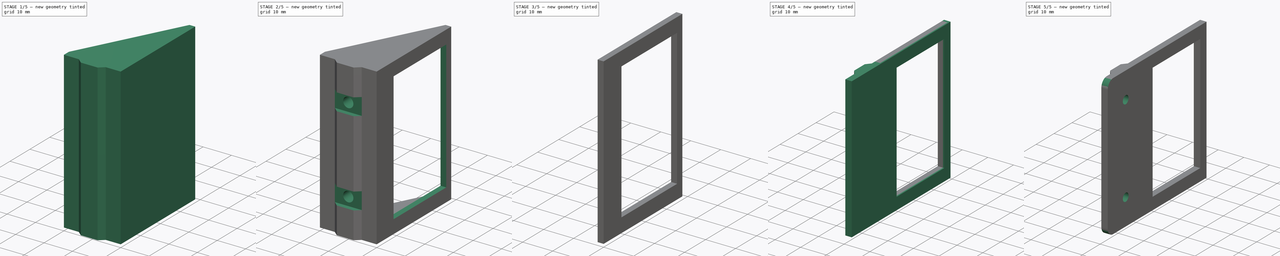
[diagram: build sequence overview — one tinted view per stage of 5, left to right]
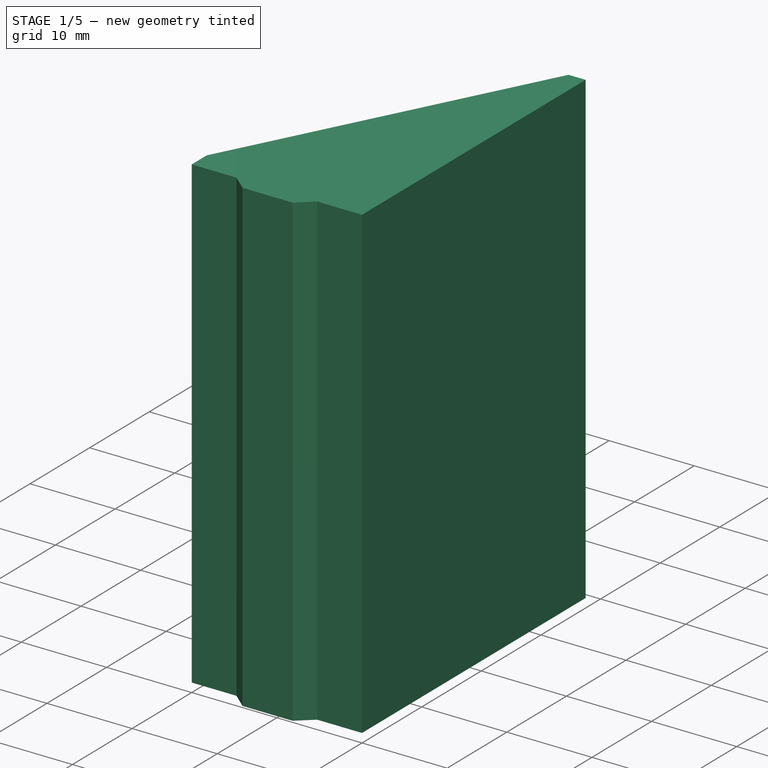
[diagram: stage 1 of 5 — iso view after this stage's code; geometry added in this stage tinted green]
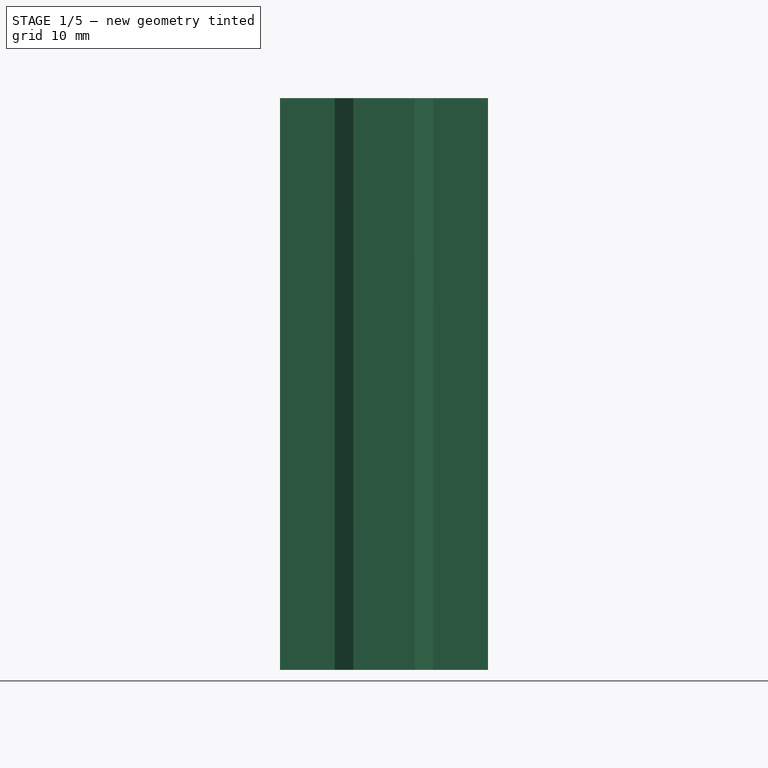
[diagram: stage 1 of 5 — front view after this stage's code; geometry added in this stage tinted green]
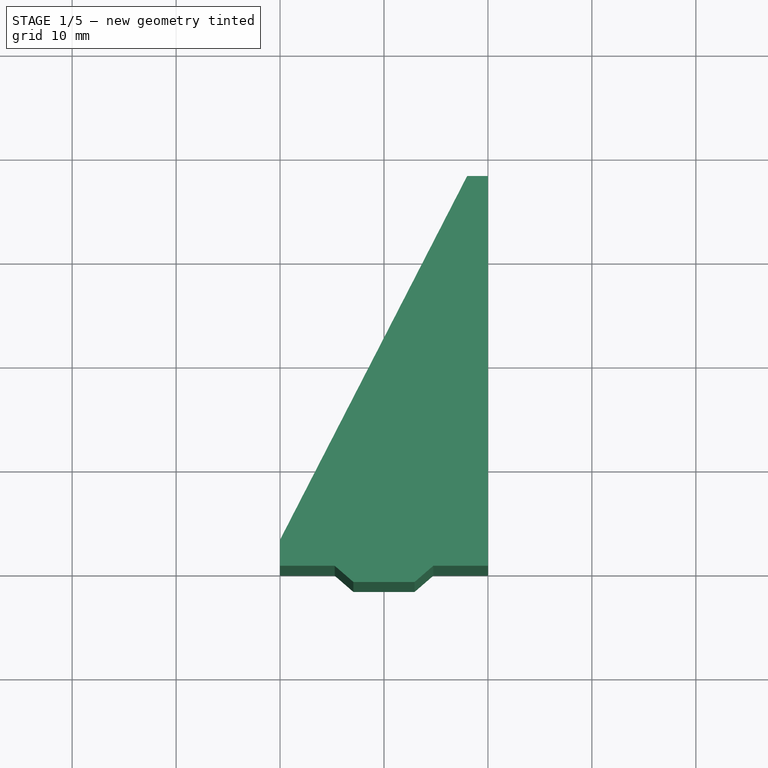
[diagram: stage 1 of 5 — top view after this stage's code; geometry added in this stage tinted green]
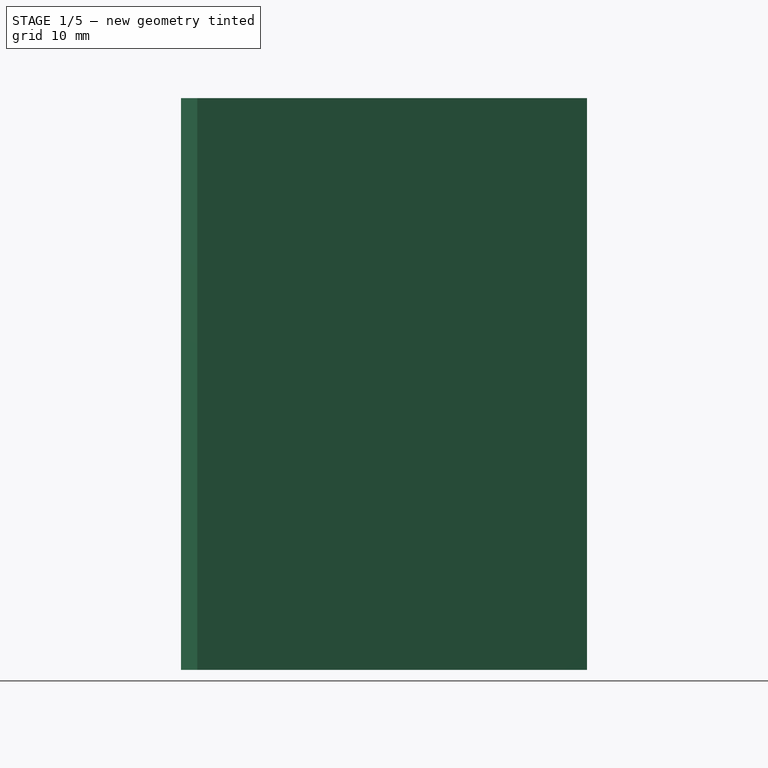
[diagram: stage 1 of 5 — right view after this stage's code; geometry added in this stage tinted green]
FCSTD DOCUMENT  (FreeCAD 0.21R33771 (Git))
Label: suporte-voltimetro-amperimetro-plano
License: All rights reserved
LicenseURL: https://en.wikipedia.org/wiki/All_rights_reserved
objects: Sketcher::SketchObject×13, PartDesign::Pocket×8, PartDesign::Pad×7, PartDesign::Chamfer×1, PartDesign::Fillet×1, PartDesign::Body×1
note: 48 computed .brp shape members not serialized (recipe doc carries the construction recipe); baked Part::Feature solids carry a one-line shape summary decoded from their .brp

FEATURE [Sketcher::SketchObject] Sketch
  FullyConstrained = true
  MapMode = 5
  Support = -> [XY_Plane]
  sketch-geometry (11):
    g0: LineSegment StartX=-10 StartY=-17.5 StartZ=0 EndX=-10 EndY=-20 EndZ=0
    g1: LineSegment StartX=-10 StartY=-20 StartZ=0 EndX=10 EndY=-20 EndZ=0
    g2: LineSegment StartX=10 StartY=-20 StartZ=0 EndX=10 EndY=17.5 EndZ=0
    g3: LineSegment StartX=10 StartY=17.5 StartZ=0 EndX=8 EndY=17.5 EndZ=0
    g4: LineSegment StartX=8 StartY=17.5 StartZ=0 EndX=8 EndY=-17.5 EndZ=0
    g5: LineSegment StartX=8 StartY=-17.5 StartZ=0 EndX=-10 EndY=-17.5 EndZ=0
    g6: LineSegment StartX=-10 StartY=-20 StartZ=0 EndX=-4.74 EndY=-20 EndZ=0
    g7: LineSegment StartX=-4.74 StartY=-20 StartZ=0 EndX=-2.94 EndY=-21.56 EndZ=0
    g8: LineSegment StartX=-2.94 StartY=-21.56 StartZ=0 EndX=2.94 EndY=-21.56 EndZ=0
    g9: LineSegment StartX=2.94 StartY=-21.56 StartZ=0 EndX=4.74 EndY=-20 EndZ=0
    g10: LineSegment StartX=4.74 StartY=-20 StartZ=0 EndX=10 EndY=-20 EndZ=0
  constraints (29):
    c: Vertical(g0)
    c: Coincident(g0,g1)
    c: Coincident(g1,g2)
    c: Coincident(g2,g3)
    c: Horizontal(g3)
    c: Coincident(g3,g4)
    c: Coincident(g4,g5)
    c: Coincident(g5,g0)
    c: Horizontal(g5)
    c: Symmetric(g0,g2,g-2)
    c: Symmetric(g4,g3,g-1)
    c: Vertical(g2)
    c: DistanceX(g3,g3) = 2
    c: DistanceY(g4,g4) = 35
    c: DistanceX(g1,g1) = 20
    c: Coincident(g0,g6)
    c: Coincident(g6,g7)
    c: Coincident(g7,g8)
    c: Coincident(g8,g9)
    c: Coincident(g9,g10)
    c: Coincident(g10,g2)
    c: Horizontal(g10)
    c: Horizontal(g6)
    c: Equal(g7,g9)
    c: Symmetric(g8,g7,g-2)
    c: DistanceX(g6,g9) = 9.48
    c: DistanceX(g8,g8) = 5.88
    c: DistanceY(g7,g6) = 1.56
    c: DistanceY(g0,g0) = 2.5
FEATURE [PartDesign::Pad] Pad
  Direction = (0,0,1)
  Length = 55
  Length2 = 10
  Profile = -> Sketch
  ReferenceAxis = -> Sketch [N_Axis]
  Type = 0
FEATURE [Sketcher::SketchObject] Sketch001
  ExternalGeometry = -> [Pad]
  FullyConstrained = true
  MapMode = 5
  Placement = pos=(0,0,0) rot=(1,0,0;3.14159rad)
  Support = -> [Pad]
  sketch-geometry (3):
    g0: LineSegment StartX=-10 StartY=17.5 StartZ=0 EndX=8 EndY=-17.5 EndZ=0
    g1: LineSegment StartX=8 StartY=-17.5 StartZ=0 EndX=8 EndY=17.5 EndZ=0
    g2: LineSegment StartX=8 StartY=17.5 StartZ=0 EndX=-10 EndY=17.5 EndZ=0
  constraints (6):
    c: Coincident(g0,g1)
    c: Coincident(g1,g2)
    c: Coincident(g2,g0)
    c: Coincident(g0,g-3)
    c: Coincident(g1,g-4)
    c: Coincident(g0,g-4)
FEATURE [PartDesign::Pad] Pad001
  BaseFeature = -> Pad
  Direction = (0,0,-1)
  Length = 10
  Length2 = 10
  Profile = -> Sketch001
  ReferenceAxis = -> Sketch001 [N_Axis]
  Type = 3
  UpToFace = -> Pad [Face12]
FEATURE [Sketcher::SketchObject] Sketch002
  ExternalGeometry = -> [Pad001]
  FullyConstrained = true
  MapMode = 5
  Placement = pos=(-10,0,0) rot=(0.57735,-0.57735,-0.57735;2.0944rad)
  Support = -> [Pad001]
  sketch-geometry (5):
    g0: LineSegment StartX=-17.5 StartY=27.5 StartZ=0 EndX=17.5 EndY=27.5 EndZ=0
    g1: LineSegment StartX=-17.5 StartY=53 StartZ=0 EndX=17.5 EndY=53 EndZ=0
    g2: LineSegment StartX=17.5 StartY=53 StartZ=0 EndX=17.5 EndY=2 EndZ=0
    g3: LineSegment StartX=17.5 StartY=2 StartZ=0 EndX=-17.5 EndY=2 EndZ=0
    g4: LineSegment StartX=-17.5 StartY=2 StartZ=0 EndX=-17.5 EndY=53 EndZ=0
  constraints (14):
    c: PointOnObject(g0,g-3)
    c: PointOnObject(g0,g-4)
    c: Coincident(g1,g2)
    c: Coincident(g2,g3)
    c: Coincident(g3,g4)
    c: Coincident(g4,g1)
    c: Horizontal(g1)
    c: Horizontal(g3)
    c: Vertical(g2)
    c: PointOnObject(g0,g2)
    c: Symmetric(g3,g1,g0)
    c: PointOnObject(g0,g4)
    c: DistanceY(g1,g-3) = 2
    c: Symmetric(g-4,g-4,g0)
FEATURE [PartDesign::Pocket] Pocket
  BaseFeature = -> Pad001
  Direction = (1,0,0)
  Length = 18
  Length2 = 5
  Profile = -> Sketch002
  ReferenceAxis = -> Sketch002 [N_Axis]
  Type = 0
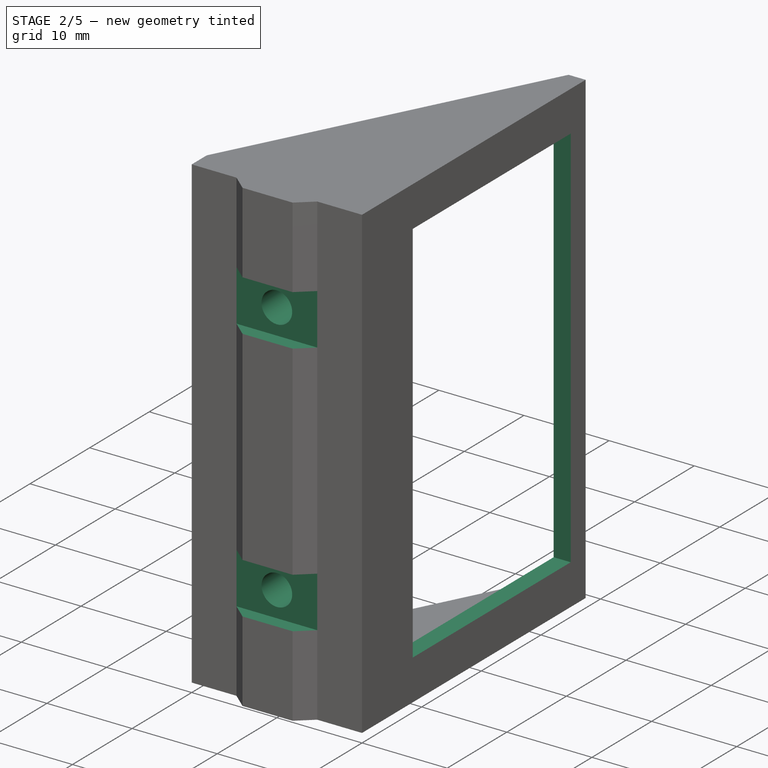
[diagram: stage 2 of 5 — iso view after this stage's code; geometry added in this stage tinted green]
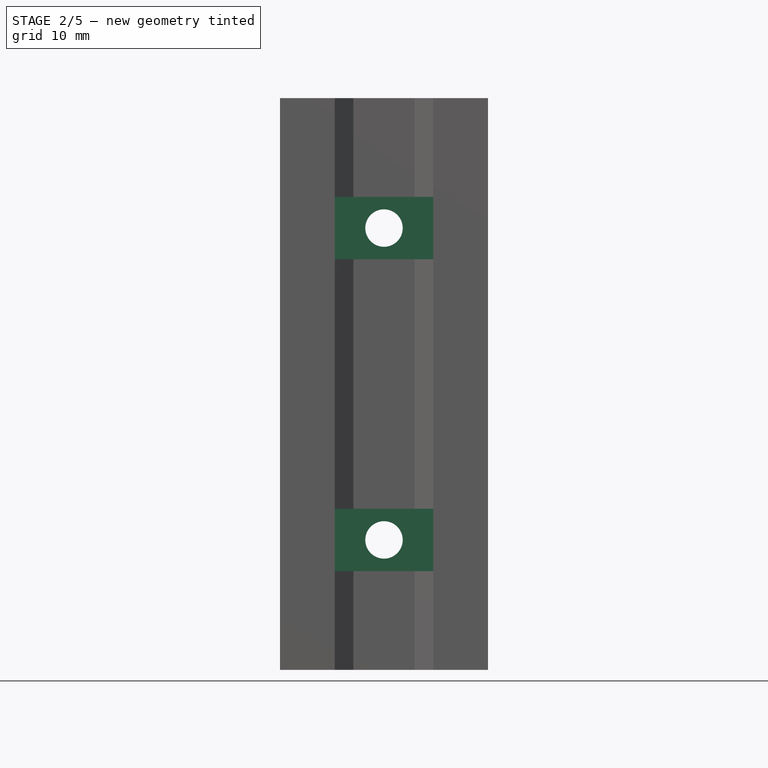
[diagram: stage 2 of 5 — front view after this stage's code; geometry added in this stage tinted green]
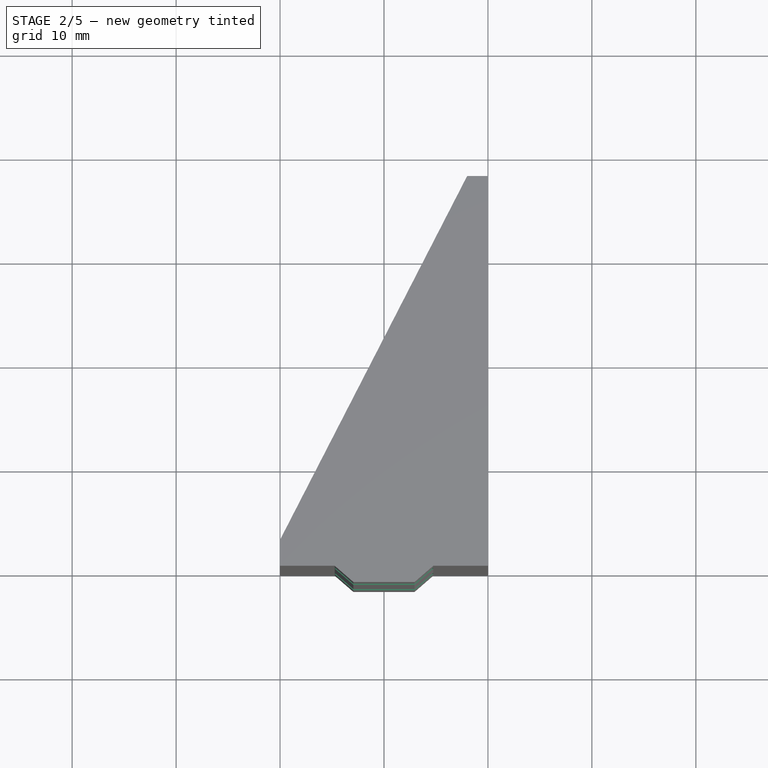
[diagram: stage 2 of 5 — top view after this stage's code; geometry added in this stage tinted green]
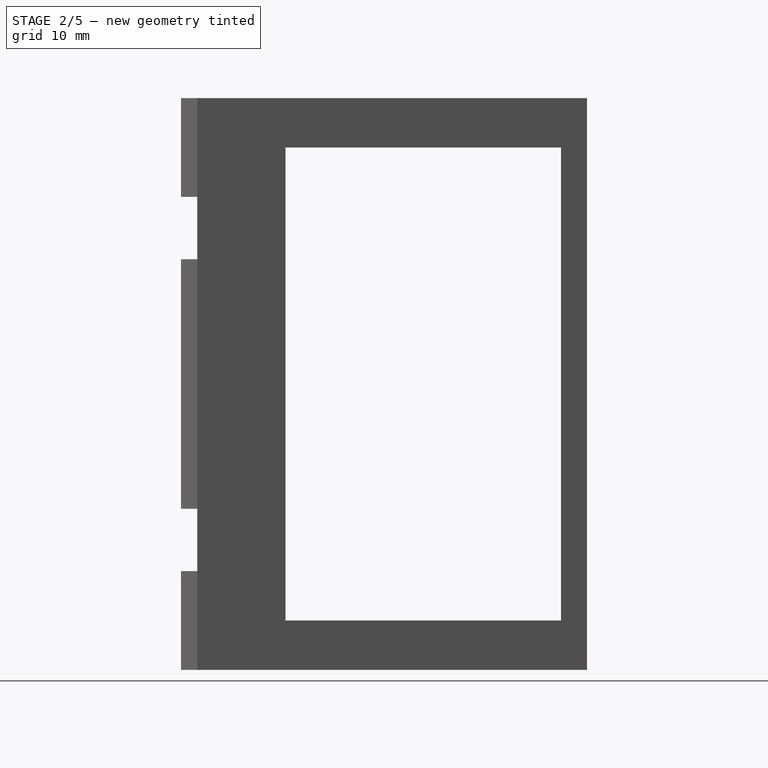
[diagram: stage 2 of 5 — right view after this stage's code; geometry added in this stage tinted green]
FEATURE [Sketcher::SketchObject] Sketch003
  ExternalGeometry = -> [Pocket]
  FullyConstrained = true
  MapMode = 5
  Placement = pos=(8,0,0) rot=(0.57735,-0.57735,-0.57735;2.0944rad)
  Support = -> [Pocket]
  sketch-geometry (5):
    g0: LineSegment StartX=-15 StartY=50.25 StartZ=0 EndX=11.5 EndY=50.25 EndZ=0
    g1: LineSegment StartX=11.5 StartY=50.25 StartZ=0 EndX=11.5 EndY=4.75 EndZ=0
    g2: LineSegment StartX=11.5 StartY=4.75 StartZ=0 EndX=-15 EndY=4.75 EndZ=0
    g3: LineSegment StartX=-15 StartY=4.75 StartZ=0 EndX=-15 EndY=50.25 EndZ=0
    g4: LineSegment StartX=-17.5 StartY=27.5 StartZ=0 EndX=17.5 EndY=27.5 EndZ=0
  constraints (14):
    c: Coincident(g0,g1)
    c: Coincident(g1,g2)
    c: Coincident(g2,g3)
    c: Coincident(g3,g0)
    c: Horizontal(g0)
    c: Horizontal(g2)
    c: Vertical(g1)
    c: Symmetric(g0,g2,g4)
    c: Symmetric(g-3,g-3,g4)
    c: PointOnObject(g4,g-3)
    c: PointOnObject(g4,g-4)
    c: DistanceX(g-3,g0) = 2.5
    c: DistanceX(g0,g0) = 26.5
    c: DistanceY(g1,g1) = 45.5
FEATURE [PartDesign::Pocket] Pocket001
  BaseFeature = -> Pocket
  Direction = (1,0,0)
  Length = 5
  Length2 = 5
  Profile = -> Sketch003
  ReferenceAxis = -> Sketch003 [N_Axis]
  Type = 1
FEATURE [Sketcher::SketchObject] Sketch004
  ExternalGeometry = -> [Pocket001]
  FullyConstrained = false
  MapMode = 5
  Placement = pos=(0,-21.56,0) rot=(1,0,0;1.5708rad)
  Support = -> [Pocket001]
  sketch-geometry (5):
    g0: LineSegment StartX=-10 StartY=27.5 StartZ=0 EndX=10 EndY=27.5 EndZ=0
    g1: LineSegment StartX=0 StartY=42.5 StartZ=0 EndX=0 EndY=12.5 EndZ=0
    g2: Circle CenterX=0 CenterY=42.5 CenterZ=0 NormalX=0 NormalY=0 NormalZ=1 AngleXU=0 Radius=1.8
    g3: Circle CenterX=0 CenterY=12.5 CenterZ=0 NormalX=0 NormalY=0 NormalZ=1 AngleXU=0 Radius=1.8
    g4: LineSegment StartX=0 StartY=41.25 StartZ=0 EndX=0 EndY=27.5 EndZ=0
  constraints (12):
    c: Symmetric(g-4,g-4,g0)
    c: PointOnObject(g0,g-4)
    c: PointOnObject(g0,g-3)
    c: Symmetric(g1,g1,g0)
    c: Symmetric(g0,g0,g1)
    c: Coincident(g2,g1)
    c: Coincident(g3,g1)
    c: Equal(g3,g2)
    c: Diameter(g2) = 3.6
    c: PointOnObject(g4,g0)
    c: PointOnObject(g4,g1)
    c: DistanceY(g3,g2) = 30
FEATURE [PartDesign::Pocket] Pocket002
  BaseFeature = -> Pocket001
  Direction = (0,1,-2e-16)
  Length = 5
  Length2 = 5
  Profile = -> Sketch004
  ReferenceAxis = -> Sketch004 [N_Axis]
  Type = 1
FEATURE [Sketcher::SketchObject] Sketch005
  ExternalGeometry = -> [Pocket002]
  FullyConstrained = true
  MapMode = 5
  Placement = pos=(0,-21.56,0) rot=(1,0,0;1.5708rad)
  Support = -> [Pocket002]
  sketch-geometry (10):
    g0: LineSegment StartX=-4.74 StartY=45.5 StartZ=0 EndX=4.74 EndY=45.5 EndZ=0
    g1: LineSegment StartX=4.74 StartY=45.5 StartZ=0 EndX=4.74 EndY=39.5 EndZ=0
    g2: LineSegment StartX=4.74 StartY=39.5 StartZ=0 EndX=-4.74 EndY=39.5 EndZ=0
    g3: LineSegment StartX=-4.74 StartY=39.5 StartZ=0 EndX=-4.74 EndY=45.5 EndZ=0
    g4: LineSegment StartX=-4.74 StartY=15.5 StartZ=0 EndX=4.74 EndY=15.5 EndZ=0
    g5: LineSegment StartX=4.74 StartY=15.5 StartZ=0 EndX=4.74 EndY=9.5 EndZ=0
    g6: LineSegment StartX=4.74 StartY=9.5 StartZ=0 EndX=-4.74 EndY=9.5 EndZ=0
    g7: LineSegment StartX=-4.74 StartY=9.5 StartZ=0 EndX=-4.74 EndY=15.5 EndZ=0
    g8: Circle CenterX=0 CenterY=12.5 CenterZ=0 NormalX=0 NormalY=0 NormalZ=1 AngleXU=0 Radius=3
    g9: Circle CenterX=0 CenterY=42.5 CenterZ=0 NormalX=0 NormalY=0 NormalZ=1 AngleXU=0 Radius=3
  constraints (28):
    c: Coincident(g0,g1)
    c: Coincident(g1,g2)
    c: Coincident(g2,g3)
    c: Coincident(g3,g0)
    c: Horizontal(g0)
    c: Horizontal(g2)
    c: Vertical(g1)
    c: Vertical(g3)
    c: Coincident(g4,g5)
    c: Coincident(g5,g6)
    c: Coincident(g6,g7)
    c: Coincident(g7,g4)
    c: Horizontal(g4)
    c: Horizontal(g6)
    c: Vertical(g5)
    c: Vertical(g7)
    c: Coincident(g8,g-6)
    c: Coincident(g9,g-5)
    c: Tangent(g9,g0)
    c: Tangent(g2,g9)
    c: Tangent(g8,g4)
    c: Tangent(g8,g6)
    c: PointOnObject(g4,g-3)
    c: PointOnObject(g4,g-4)
    c: PointOnObject(g1,g-4)
    c: PointOnObject(g2,g-3)
    c: Equal(g9,g8)
    c: Diameter(g9) = 6
FEATURE [PartDesign::Pocket] Pocket003
  BaseFeature = -> Pocket002
  Direction = (0,1,-2e-16)
  Length = 0
  Length2 = 5
  Profile = -> Sketch005
  ReferenceAxis = -> Sketch005 [N_Axis]
  Type = 3
  UpToFace = -> Pocket002 [Face19]
FEATURE [Sketcher::SketchObject] Sketch006
  ExternalGeometry = -> [Pocket003]
  FullyConstrained = true
  MapMode = 5
  Placement = pos=(0,-17.5,0) rot=(0,0.707107,0.707107;3.14159rad)
  Support = -> [Pocket003]
  sketch-geometry (4):
    g0: Circle CenterX=0 CenterY=42.5 CenterZ=0 NormalX=0 NormalY=0 NormalZ=1 AngleXU=0 Radius=2.8
    g1: Circle CenterX=0 CenterY=12.5 CenterZ=0 NormalX=0 NormalY=0 NormalZ=1 AngleXU=0 Radius=2.8
    g2: Circle CenterX=0 CenterY=12.5 CenterZ=0 NormalX=0 NormalY=0 NormalZ=1 AngleXU=0 Radius=1.8
    g3: Circle CenterX=0 CenterY=42.5 CenterZ=0 NormalX=0 NormalY=0 NormalZ=1 AngleXU=0 Radius=1.8
  constraints (8):
    c: Coincident(g0,g-3)
    c: Coincident(g1,g-4)
    c: Diameter(g1) = 5.6
    c: Equal(g0,g1)
    c: Coincident(g3,g0)
    c: Equal(g2,g3)
    c: Equal(g3,g-3)
    c: Coincident(g2,g1)
FEATURE [PartDesign::Pad] Pad002
  BaseFeature = -> Pocket003
  Direction = (0,1,-2e-16)
  Length = 3.5
  Length2 = 10
  Profile = -> Sketch006
  ReferenceAxis = -> Sketch006 [N_Axis]
  Type = 0
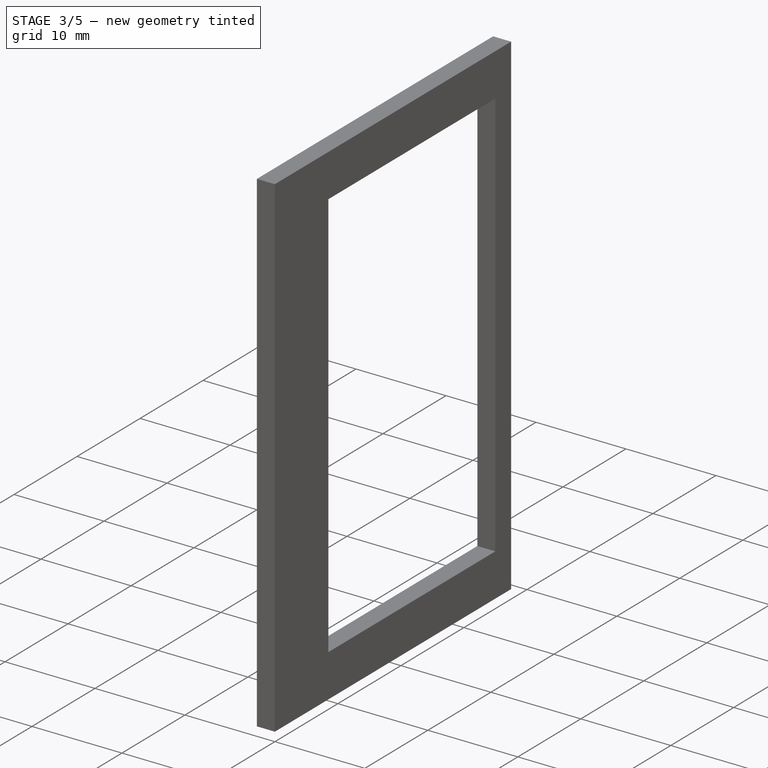
[diagram: stage 3 of 5 — iso view after this stage's code; geometry added in this stage tinted green]
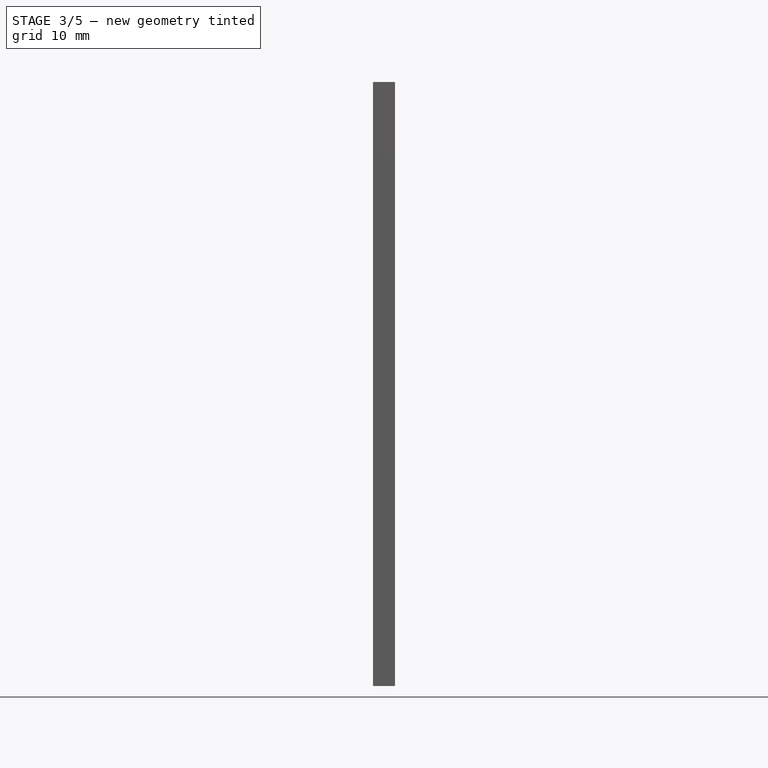
[diagram: stage 3 of 5 — front view after this stage's code; geometry added in this stage tinted green]
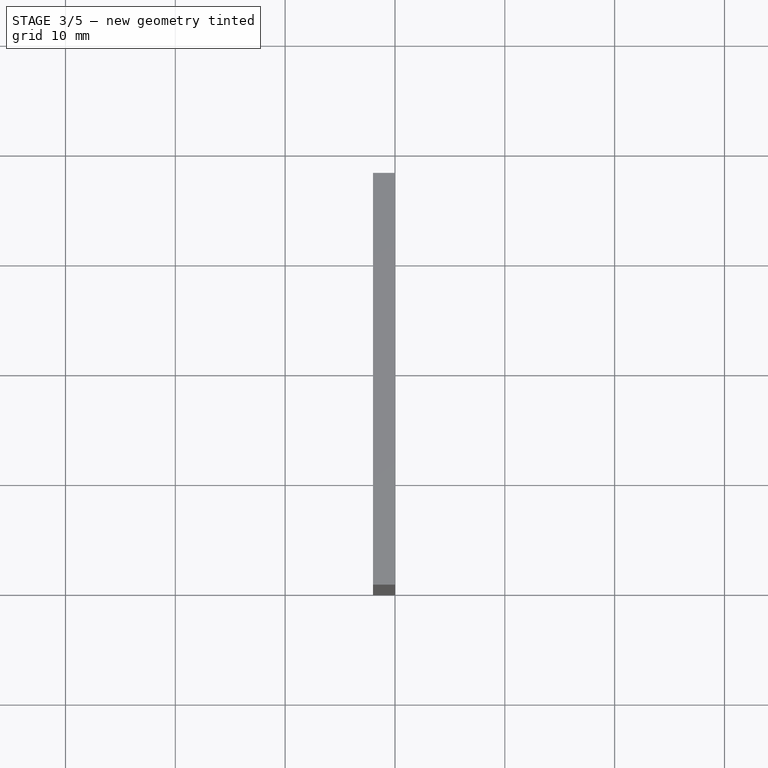
[diagram: stage 3 of 5 — top view after this stage's code; geometry added in this stage tinted green]
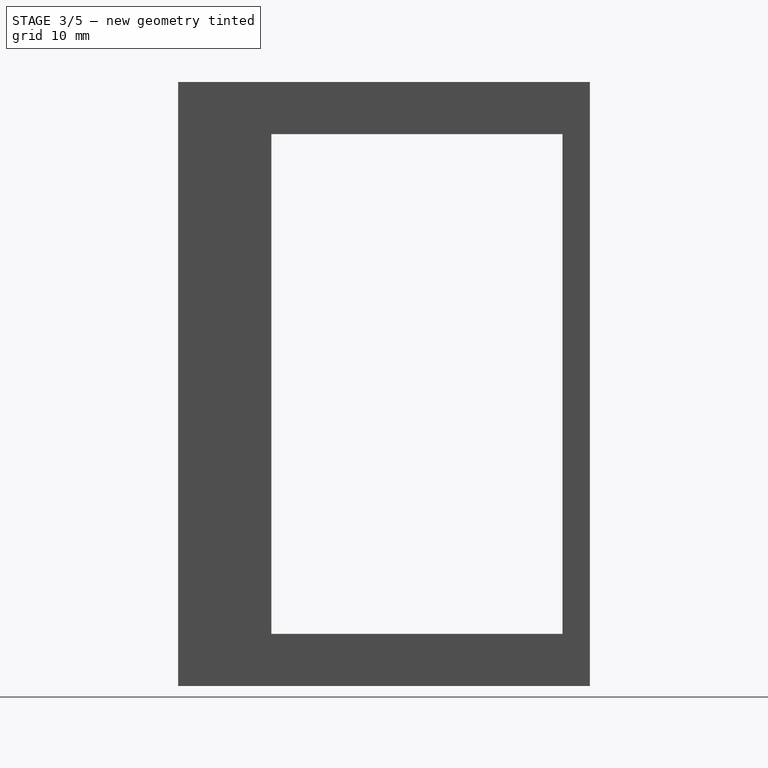
[diagram: stage 3 of 5 — right view after this stage's code; geometry added in this stage tinted green]
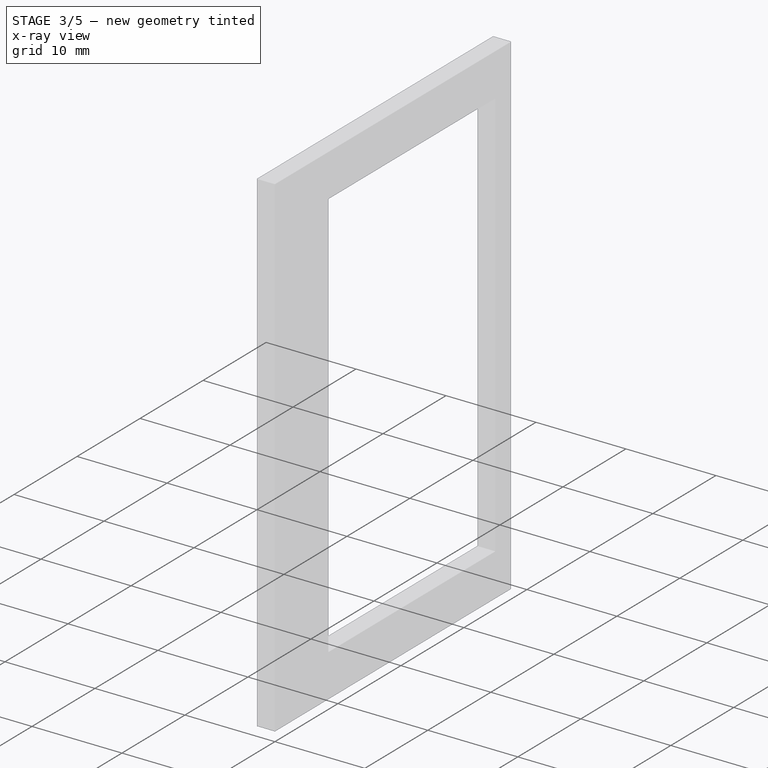
[diagram: stage 3 of 5 — x-ray composite at the iso view; earlier geometry ghosted, this stage's added geometry solid]
FEATURE [PartDesign::Chamfer] Chamfer
  Angle = 45
  Base = -> Pad002 [Edge14,Edge13]
  BaseFeature = -> Pad002
  ChamferType = 0
  FlipDirection = false
  Size = 3.499
  Size2 = 1
  SupportTransform = false
  UseAllEdges = false
FEATURE [Sketcher::SketchObject] Sketch007  label="medidas-tela"
  ExternalGeometry = -> [Chamfer]
  FullyConstrained = true
  MapMode = 5
  Placement = pos=(10,0,0) rot=(0.57735,0.57735,0.57735;2.0944rad)
  Support = -> [Chamfer]
  constraints (2):
    c: DistanceY(g-3,g-3) = 45.5
    c: DistanceX(g-4,g-4) = 26.5
FEATURE [PartDesign::Pocket] Pocket004
  BaseFeature = -> Chamfer
  Direction = (0,0,1)
  Length = 5
  Length2 = 5
  Profile = -> Chamfer [Face22]
  Type = 1
FEATURE [Sketcher::SketchObject] Sketch008
  ExternalGeometry = -> [Pocket004]
  FullyConstrained = true
  MapMode = 5
  Placement = pos=(0,0,55) rot=(0,0,1;0rad)
  Support = -> [Pocket004]
  sketch-geometry (4):
    g0: LineSegment StartX=-10 StartY=-17.5 StartZ=0 EndX=8 EndY=-17.5 EndZ=0
    g1: LineSegment StartX=8 StartY=-17.5 StartZ=0 EndX=8 EndY=-21.56 EndZ=0
    g2: LineSegment StartX=8 StartY=-21.56 StartZ=0 EndX=-10 EndY=-21.56 EndZ=0
    g3: LineSegment StartX=-10 StartY=-21.56 StartZ=0 EndX=-10 EndY=-17.5 EndZ=0
  constraints (10):
    c: Coincident(g0,g1)
    c: Coincident(g2,g3)
    c: Coincident(g3,g0)
    c: Vertical(g1)
    c: Vertical(g3)
    c: Coincident(g0,g-3)
    c: Coincident(g1,g2)
    c: PointOnObject(g-4,g2)
    c: PointOnObject(g-4,g2)
    c: Coincident(g0,g-6)
FEATURE [PartDesign::Pocket] Pocket005
  BaseFeature = -> Pocket004
  Direction = (0,0,-1)
  Length = 5
  Length2 = 5
  Profile = -> Sketch008
  ReferenceAxis = -> Sketch008 [N_Axis]
  Type = 1
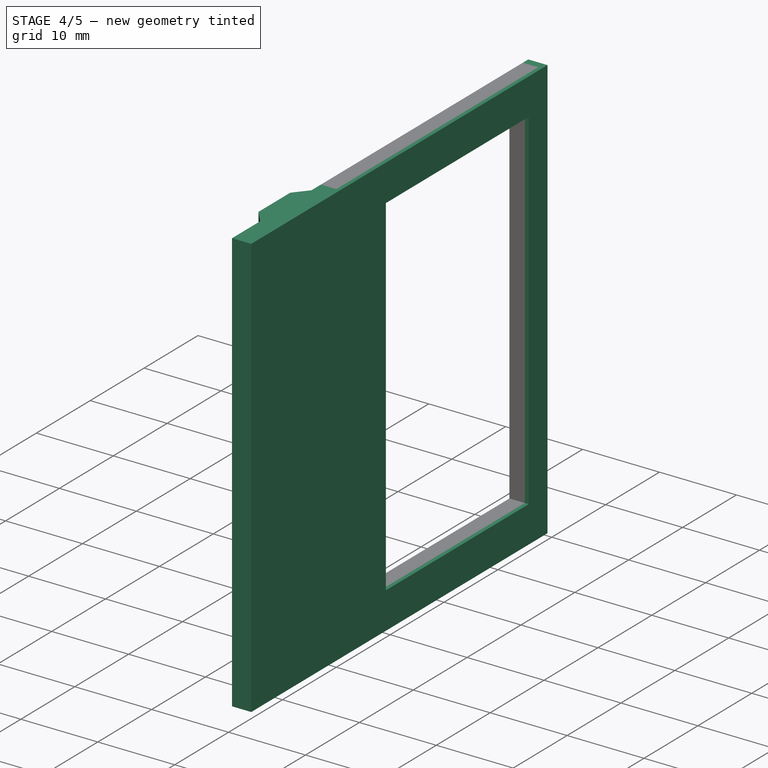
[diagram: stage 4 of 5 — iso view after this stage's code; geometry added in this stage tinted green]
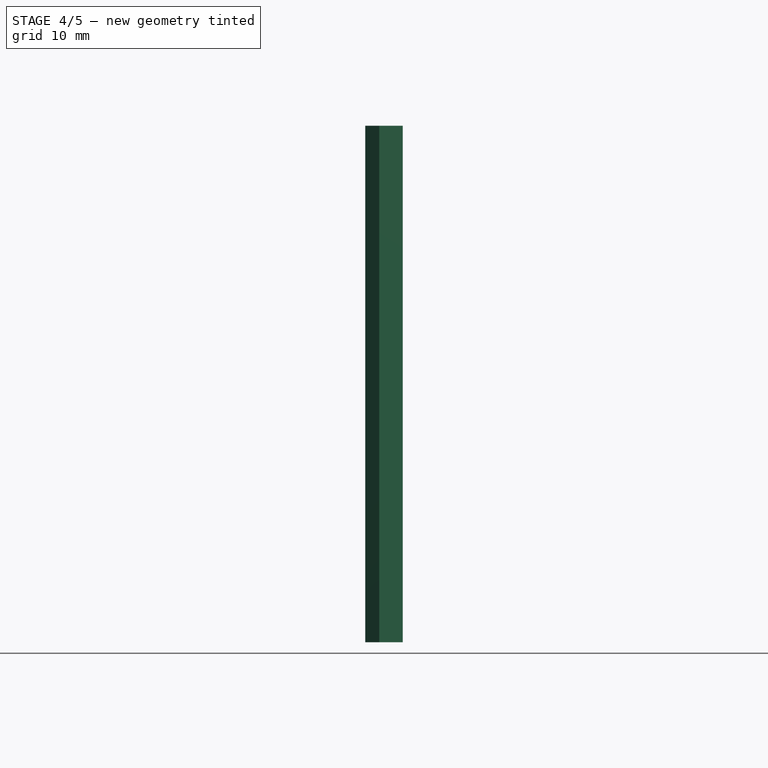
[diagram: stage 4 of 5 — front view after this stage's code; geometry added in this stage tinted green]
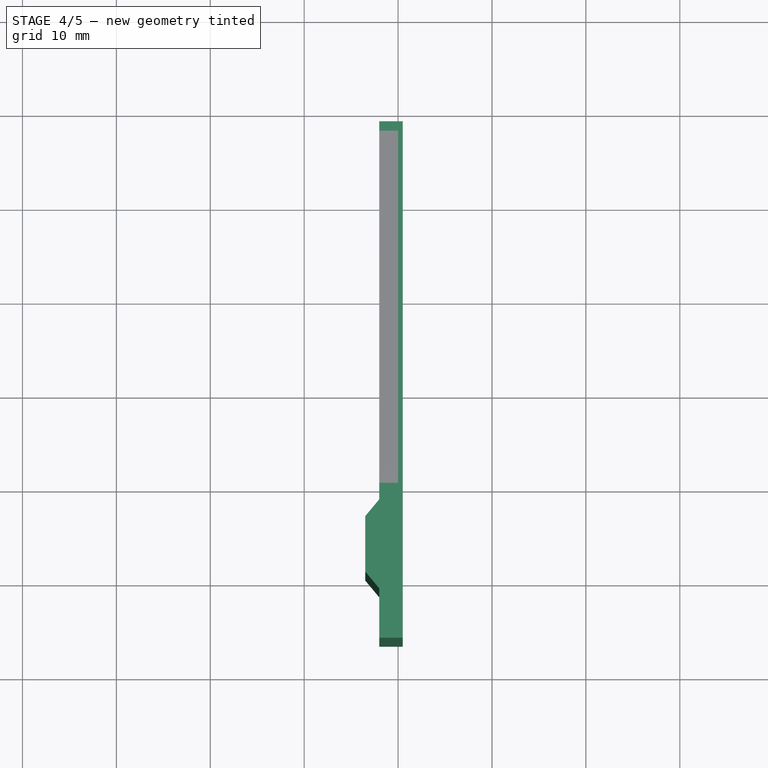
[diagram: stage 4 of 5 — top view after this stage's code; geometry added in this stage tinted green]
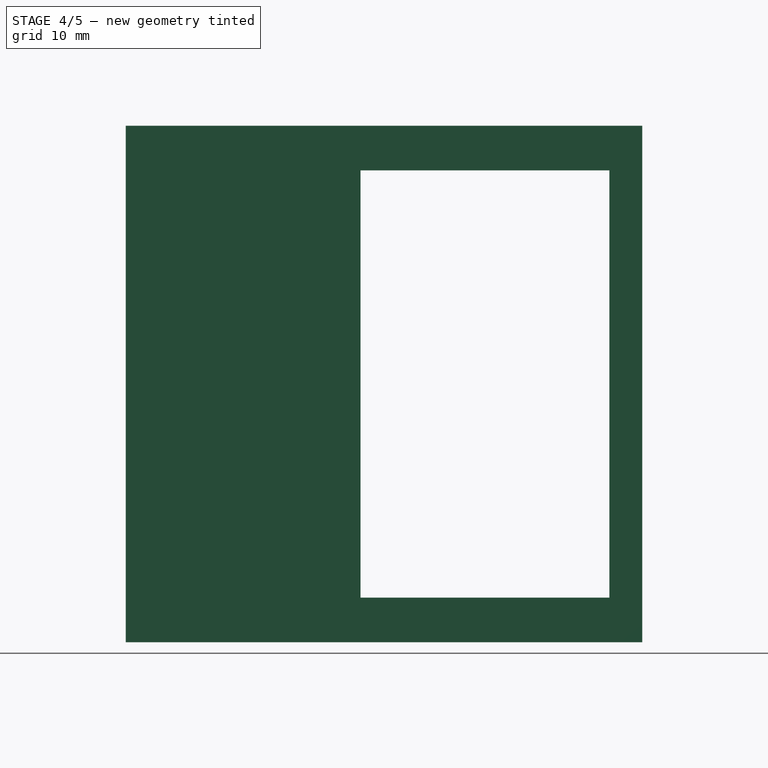
[diagram: stage 4 of 5 — right view after this stage's code; geometry added in this stage tinted green]
FEATURE [Sketcher::SketchObject] Sketch009
  ExternalGeometry = -> [Pocket005]
  FullyConstrained = false
  MapMode = 5
  Placement = pos=(10,0,0) rot=(0.57735,0.57735,0.57735;2.0944rad)
  Support = -> [Pocket005]
  sketch-geometry (4):
    g0: LineSegment StartX=-20 StartY=55 StartZ=0 EndX=-36.5 EndY=55 EndZ=0
    g1: LineSegment StartX=-36.5 StartY=55 StartZ=0 EndX=-36.5 EndY=0 EndZ=0
    g2: LineSegment StartX=-36.5 StartY=0 StartZ=0 EndX=-20 EndY=0 EndZ=0
    g3: LineSegment StartX=-20 StartY=0 StartZ=0 EndX=-20 EndY=55 EndZ=0
  constraints (11):
    c: Coincident(g0,g1)
    c: Coincident(g1,g2)
    c: Coincident(g2,g3)
    c: Coincident(g3,g0)
    c: Horizontal(g0)
    c: Horizontal(g2)
    c: Vertical(g1)
    c: Vertical(g3)
    c: Coincident(g0,g-3)
    c: PointOnObject(g1,g-1)
    c: DistanceX(g0,g-4) = 25
FEATURE [PartDesign::Pad] Pad003
  BaseFeature = -> Pocket005
  Direction = (1,0,0)
  Length = 10
  Length2 = 10
  Profile = -> Sketch009
  ReferenceAxis = -> Sketch009 [N_Axis]
  Type = 3
  UpToFace = -> Pocket005 [Face1]
FEATURE [PartDesign::Pad] Pad004
  BaseFeature = -> Pad003
  Direction = (0,1,0)
  Length = 1
  Length2 = 10
  Profile = -> Pad003 [Face3]
  Type = 0
FEATURE [PartDesign::Pad] Pad005
  BaseFeature = -> Pad004
  Direction = (1,0,0)
  Length = 0.5
  Length2 = 10
  Profile = -> Pad004 [Face23,Face16,Face20]
  Type = 0
FEATURE [Sketcher::SketchObject] Sketch010
  ExternalGeometry = -> [Pad005]
  FullyConstrained = true
  MapMode = 5
  Placement = pos=(0,0,0) rot=(1,0,0;3.14159rad)
  Support = -> [Pad005]
  sketch-geometry (6):
    g0: LineSegment StartX=8 StartY=36.5 StartZ=0 EndX=8 EndY=16.5 EndZ=0
    g1: LineSegment StartX=6.5 StartY=26.5 StartZ=0 EndX=10.5 EndY=26.5 EndZ=0
    g2: LineSegment StartX=6.5 StartY=29.45 StartZ=0 EndX=6.5 EndY=23.55 EndZ=0
    g3: LineSegment StartX=6.5 StartY=23.55 StartZ=0 EndX=8 EndY=21.75 EndZ=0
    g4: LineSegment StartX=8 StartY=21.75 StartZ=0 EndX=8 EndY=31.25 EndZ=0
    g5: LineSegment StartX=8 StartY=31.25 StartZ=0 EndX=6.5 EndY=29.45 EndZ=0
  constraints (16):
    c: Coincident(g0,g-3)
    c: Vertical(g0,g-3)
    c: DistanceY(g0,g0) = 20
    c: Symmetric(g0,g0,g1)
    c: PointOnObject(g1,g-4)
    c: Coincident(g2,g3)
    c: Coincident(g3,g4)
    c: Coincident(g4,g5)
    c: Coincident(g5,g2)
    c: Symmetric(g3,g4,g1)
    c: Symmetric(g2,g2,g1)
    c: PointOnObject(g4,g0)
    c: DistanceX(g2,g4) = 1.5
    c: DistanceY(g4,g4) = 9.5
    c: DistanceY(g2,g2) = 5.9
    c: PointOnObject(g1,g2)
FEATURE [PartDesign::Pad] Pad006
  BaseFeature = -> Pad005
  Direction = (0,0,-1)
  Length = 10
  Length2 = 10
  Profile = -> Sketch010
  ReferenceAxis = -> Sketch010 [N_Axis]
  Type = 3
  UpToFace = -> Pad005 [Face22]
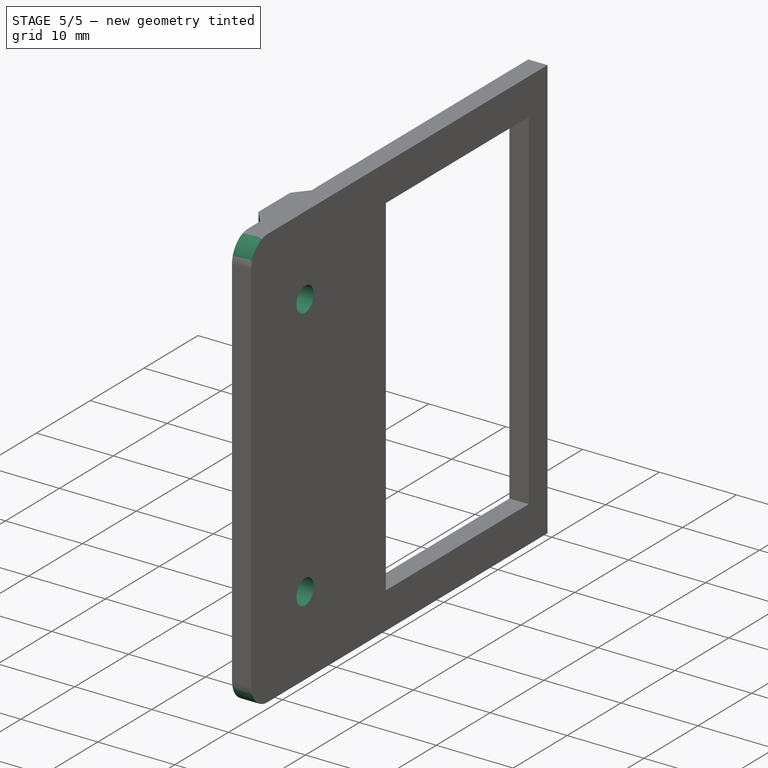
[diagram: stage 5 of 5 — iso view after this stage's code; geometry added in this stage tinted green]
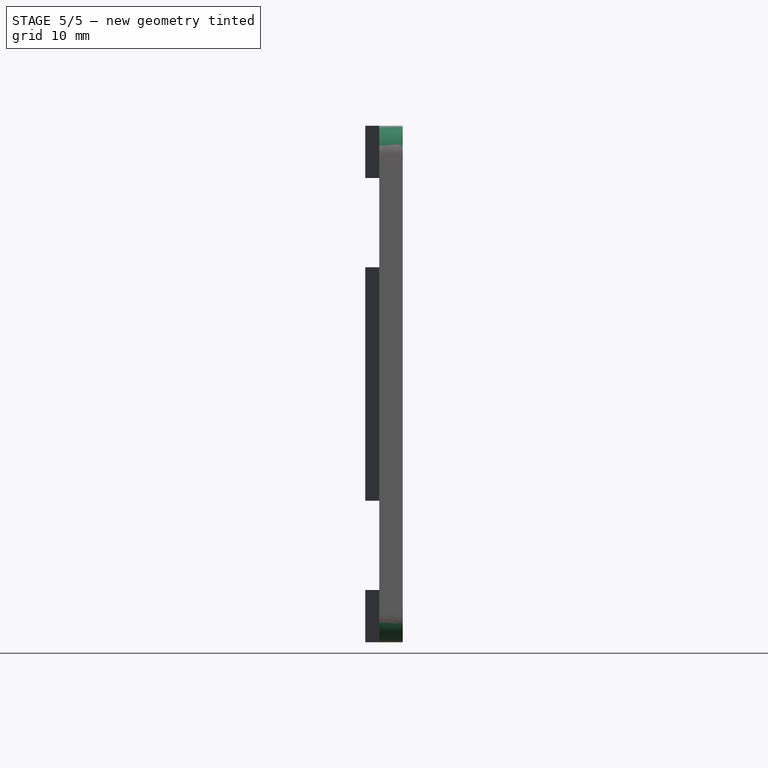
[diagram: stage 5 of 5 — front view after this stage's code; geometry added in this stage tinted green]
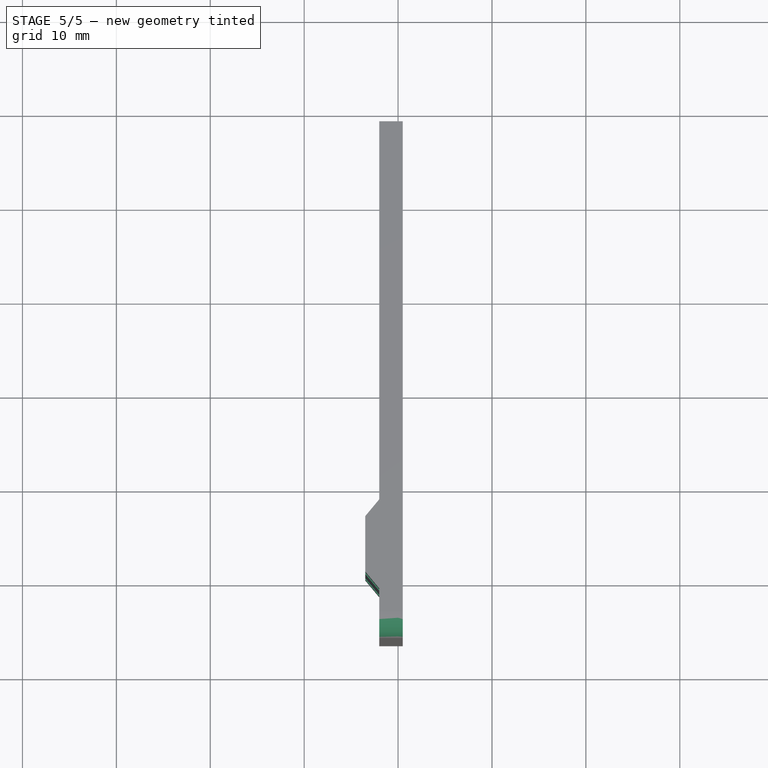
[diagram: stage 5 of 5 — top view after this stage's code; geometry added in this stage tinted green]
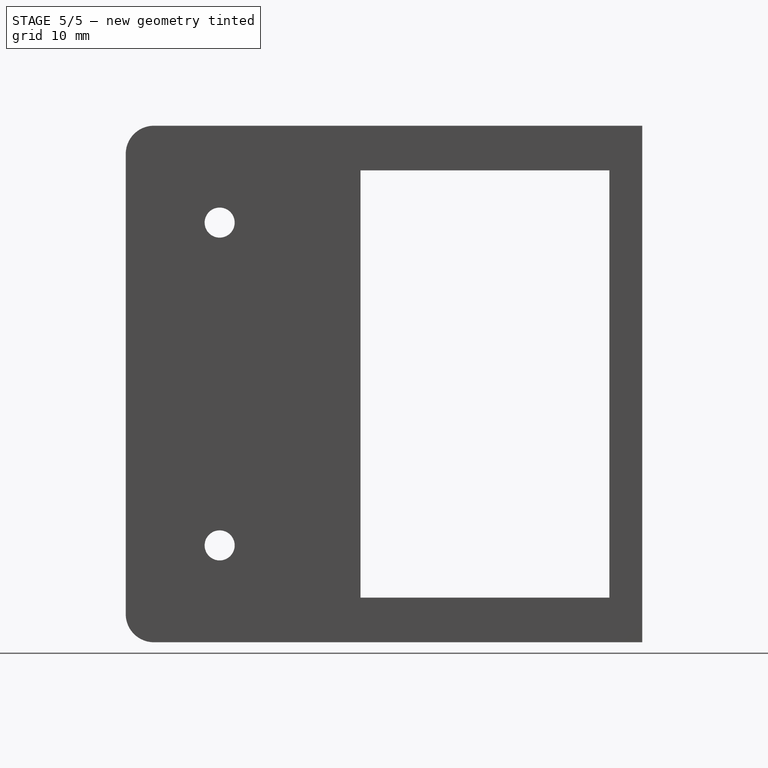
[diagram: stage 5 of 5 — right view after this stage's code; geometry added in this stage tinted green]
FEATURE [Sketcher::SketchObject] Sketch011
  ExternalGeometry = -> [Pad006]
  FullyConstrained = true
  MapMode = 5
  Placement = pos=(6.5,6.8e-15,0) rot=(0.57735,-0.57735,-0.57735;2.0944rad)
  Support = -> [Pad006]
  sketch-geometry (4):
    g0: LineSegment StartX=11.5 StartY=27.5 StartZ=0 EndX=36.5 EndY=27.5 EndZ=0
    g1: Circle CenterX=26.5 CenterY=44.686 CenterZ=0 NormalX=0 NormalY=0 NormalZ=1 AngleXU=0 Radius=1.6
    g2: Circle CenterX=26.5 CenterY=10.314 CenterZ=0 NormalX=0 NormalY=0 NormalZ=1 AngleXU=0 Radius=1.6
    g3: Circle CenterX=26.5 CenterY=44.686 CenterZ=0 NormalX=0 NormalY=0 NormalZ=1 AngleXU=0 Radius=2.95
  constraints (10):
    c: PointOnObject(g0,g-4)
    c: PointOnObject(g0,g-3)
    c: Symmetric(g-4,g-4,g0)
    c: Symmetric(g2,g1,g0)
    c: Equal(g1,g2)
    c: Diameter(g1) = 3.2
    c: Tangent(g3,g-5)
    c: Tangent(g3,g-6)
    c: Coincident(g1,g3)
    c: DistanceY(g2,g1) = 34.372
FEATURE [PartDesign::Pocket] Pocket006
  BaseFeature = -> Pad006
  Direction = (1,1e-15,1e-16)
  Length = 5
  Length2 = 5
  Profile = -> Sketch011
  ReferenceAxis = -> Sketch011 [N_Axis]
  Type = 1
FEATURE [Sketcher::SketchObject] Sketch012
  ExternalGeometry = -> [Pocket006]
  FullyConstrained = true
  MapMode = 5
  Placement = pos=(6.5,6.8e-15,0) rot=(0.57735,-0.57735,-0.57735;2.0944rad)
  Support = -> [Pocket006]
  sketch-geometry (10):
    g0: Circle CenterX=26.5 CenterY=44.686 CenterZ=0 NormalX=0 NormalY=0 NormalZ=1 AngleXU=0 Radius=4.75
    g1: Circle CenterX=26.5 CenterY=10.314 CenterZ=0 NormalX=0 NormalY=0 NormalZ=1 AngleXU=0 Radius=4.75
    g2: LineSegment StartX=21.75 StartY=15.064 StartZ=0 EndX=31.25 EndY=15.064 EndZ=0
    g3: LineSegment StartX=31.25 StartY=15.064 StartZ=0 EndX=31.25 EndY=5.564 EndZ=0
    g4: LineSegment StartX=31.25 StartY=5.564 StartZ=0 EndX=21.75 EndY=5.564 EndZ=0
    g5: LineSegment StartX=21.75 StartY=5.564 StartZ=0 EndX=21.75 EndY=15.064 EndZ=0
    g6: LineSegment StartX=21.75 StartY=39.936 StartZ=0 EndX=31.25 EndY=39.936 EndZ=0
    g7: LineSegment StartX=31.25 StartY=39.936 StartZ=0 EndX=31.25 EndY=49.436 EndZ=0
    g8: LineSegment StartX=31.25 StartY=49.436 StartZ=0 EndX=21.75 EndY=49.436 EndZ=0
    g9: LineSegment StartX=21.75 StartY=49.436 StartZ=0 EndX=21.75 EndY=39.936 EndZ=0
  constraints (28):
    c: Coincident(g0,g-6)
    c: Tangent(g0,g-4)
    c: Coincident(g1,g-3)
    c: Tangent(g1,g-5)
    c: Coincident(g2,g3)
    c: Coincident(g3,g4)
    c: Coincident(g4,g5)
    c: Coincident(g5,g2)
    c: Horizontal(g2)
    c: Horizontal(g4)
    c: Vertical(g3)
    c: Vertical(g5)
    c: PointOnObject(g2,g-4)
    c: PointOnObject(g3,g-5)
    c: Coincident(g6,g7)
    c: Coincident(g7,g8)
    c: Coincident(g8,g9)
    c: Coincident(g9,g6)
    c: Horizontal(g6)
    c: Horizontal(g8)
    c: Vertical(g7)
    c: Vertical(g9)
    c: PointOnObject(g6,g-4)
    c: PointOnObject(g7,g-5)
    c: Tangent(g0,g8)
    c: Tangent(g6,g0)
    c: Tangent(g4,g1)
    c: Tangent(g1,g2)
FEATURE [PartDesign::Pocket] Pocket007
  BaseFeature = -> Pocket006
  Direction = (1,1e-15,1e-16)
  Length = 0
  Length2 = 5
  Profile = -> Sketch012
  ReferenceAxis = -> Sketch012 [N_Axis]
  Type = 3
  UpToFace = -> Pocket006 [Face32]
FEATURE [PartDesign::Fillet] Fillet
  Base = -> Pocket007 [Edge62,Edge72]
  BaseFeature = -> Pocket007
  Radius = 3
  SupportTransform = false
  UseAllEdges = false
FEATURE [PartDesign::Body] Body
  Group = -> [Sketch,Pad,Sketch001,Pad001,Sketch002,Pocket,Sketch003,Pocket001,Sketch004,Pocket002,Sketch005,Pocket003,Sketch006,Pad002,Chamfer,Sketch007,Pocket004,Sketch008,Pocket005,Sketch009,Pad003,Pad004,Pad005,Sketch010,Pad006,Sketch011,Pocket006,Sketch012,Pocket007,Fillet]
  Origin = -> Origin
  Tip = -> Fillet
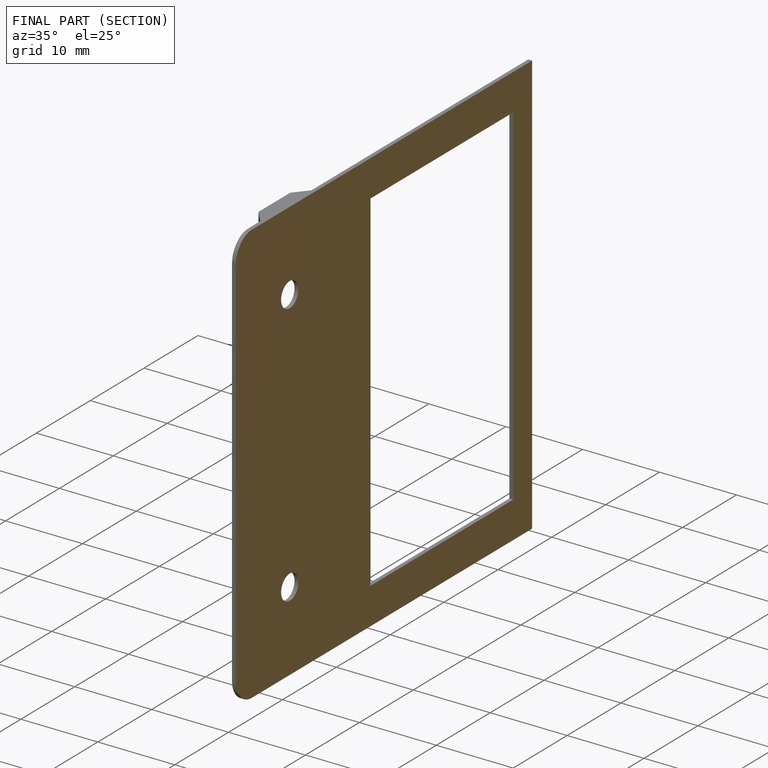
[diagram: finished part — half-section view (interior)]
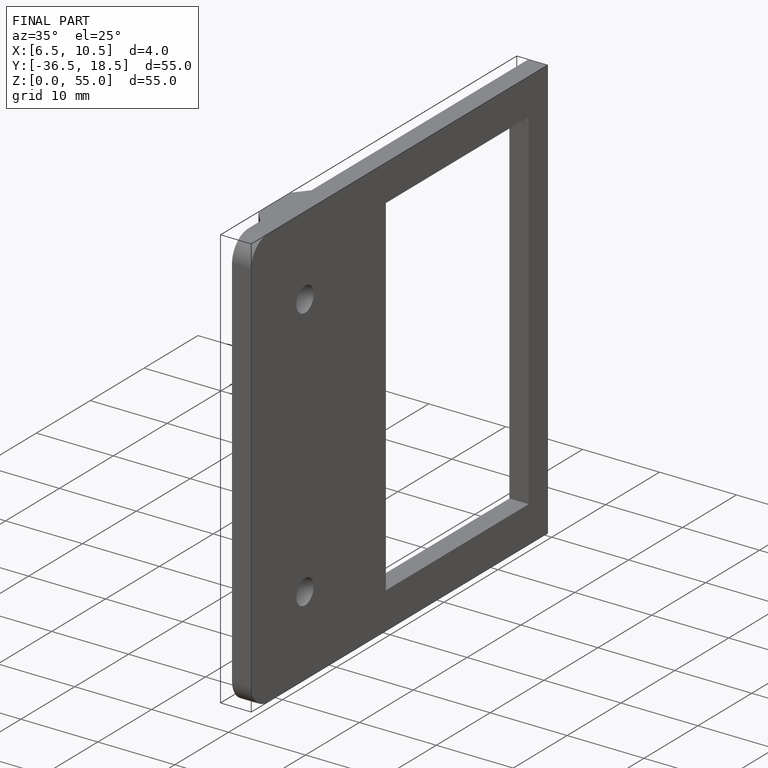
[diagram: finished part — iso view with bounding-box wireframe]
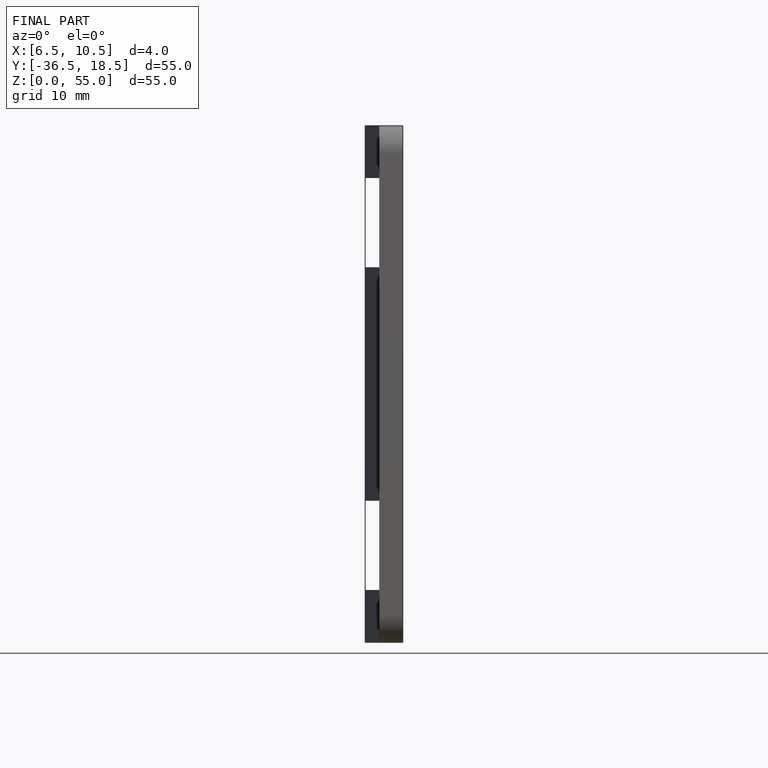
[diagram: finished part — front view with bounding-box wireframe]
